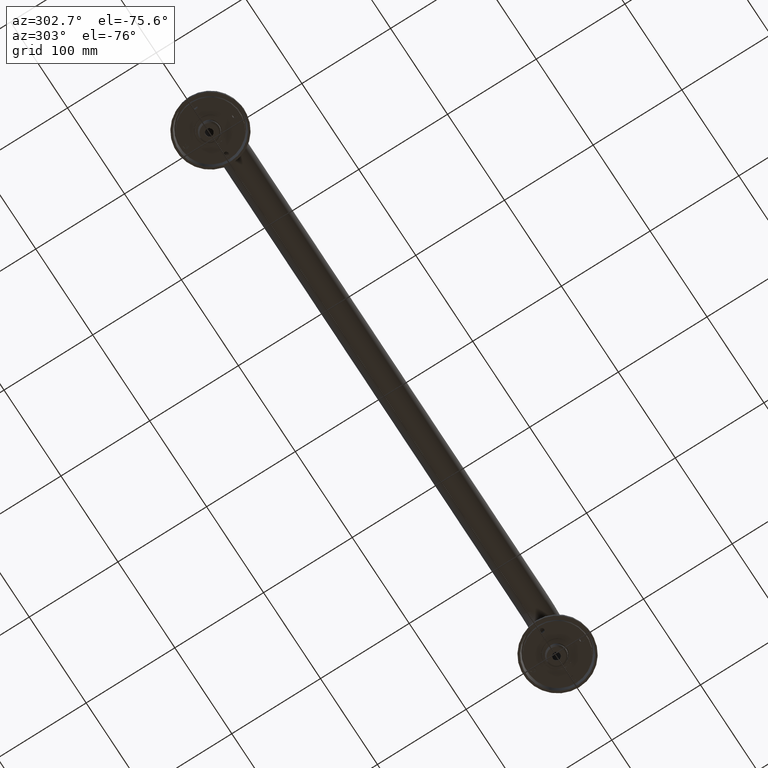
[diagram: clean part render]
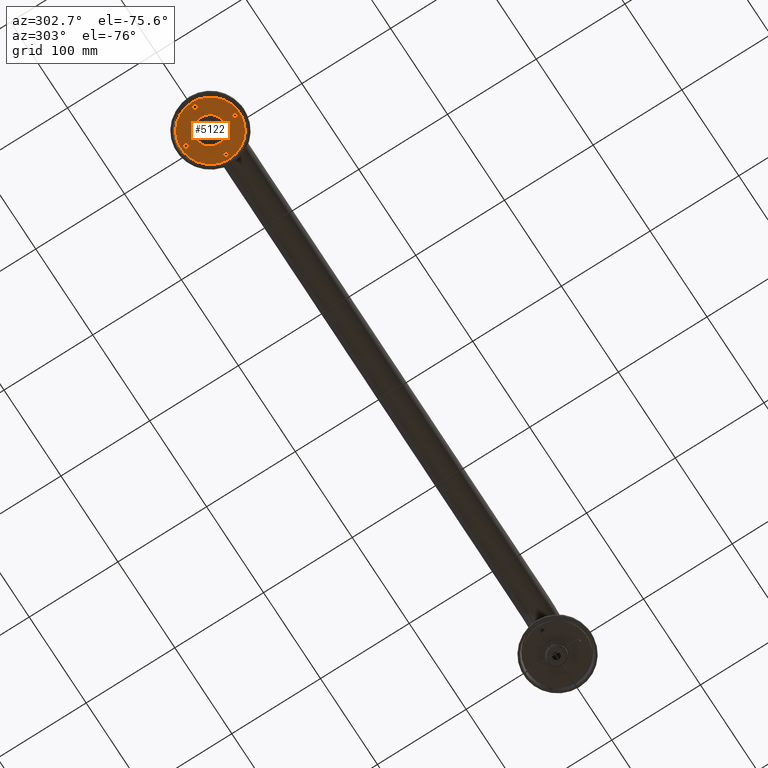
[diagram: same view with one face highlighted and labeled with its STEP entity id]
A machine part, auxiliary view. The second image highlights one B-rep face of the part: STEP entity #5122.
In plain terms, the highlighted planar face has unit normal (0, 0, -1).
Its self-contained STEP definition (entity closure, byte-faithful):
#2=CARTESIAN_POINT('',(5.722264935082E-1,0.E0,-9.464058393381E-2));
#3=CARTESIAN_POINT('',(5.688281682621E-1,0.E0,-1.218314083238E-1));
#4=CARTESIAN_POINT('',(5.582992022263E-1,0.E0,-1.751319655582E-1));
#5=CARTESIAN_POINT('',(5.313062002413E-1,0.E0,-2.526975398778E-1));
#6=CARTESIAN_POINT('',(4.939485958148E-1,0.E0,-3.254075436984E-1));
#7=CARTESIAN_POINT('',(4.466742526957E-1,0.E0,-3.926206551469E-1));
#8=CARTESIAN_POINT('',(3.902024871582E-1,0.E0,-4.530290268181E-1));
#9=CARTESIAN_POINT('',(3.254382356475E-1,0.E0,-5.053600486944E-1));
#10=CARTESIAN_POINT('',(2.544341901140E-1,0.E0,-5.480598758409E-1));
#11=CARTESIAN_POINT('',(1.768364647440E-1,0.E0,-5.812376267669E-1));
#12=CARTESIAN_POINT('',(9.329452488357E-2,0.E0,-6.036647345225E-1));
#13=CARTESIAN_POINT('',(8.831546428493E-3,0.E0,-6.137742578361E-1));
#14=CARTESIAN_POINT('',(-7.101472730259E-2,0.E0,-6.124618048716E-1));
#15=CARTESIAN_POINT('',(-1.445927257221E-1,0.E0,-6.019642030141E-1));
#16=CARTESIAN_POINT('',(-2.109207781203E-1,0.E0,-5.845606210769E-1));
#17=CARTESIAN_POINT('',(-2.724781056086E-1,0.E0,-5.611833094847E-1));
#18=CARTESIAN_POINT('',(-3.115653597881E-1,0.E0,-5.414347864731E-1));
#19=CARTESIAN_POINT('',(-3.305348218873E-1,0.E0,-5.305626650264E-1));
#21=CARTESIAN_POINT('',(-5.311850141208E-1,0.E0,3.295337475487E-1));
#22=CARTESIAN_POINT('',(-5.142968474583E-1,0.E0,3.546487406638E-1));
#23=CARTESIAN_POINT('',(-4.779550539336E-1,0.E0,4.008211967865E-1));
#24=CARTESIAN_POINT('',(-4.178893244134E-1,0.E0,4.587641475976E-1));
#25=CARTESIAN_POINT('',(-3.522505082191E-1,0.E0,5.071642330954E-1));
#26=CARTESIAN_POINT('',(-2.814594918148E-1,0.E0,5.462514978776E-1));
#27=CARTESIAN_POINT('',(-2.052844433480E-1,0.E0,5.759818730305E-1));
#28=CARTESIAN_POINT('',(-1.258220742243E-1,0.E0,5.952524664870E-1));
#29=CARTESIAN_POINT('',(-4.465596855189E-2,0.E0,6.036151363386E-1));
#30=CARTESIAN_POINT('',(3.494004686779E-2,0.E0,6.011908700706E-1));
#31=CARTESIAN_POINT('',(1.144238528315E-1,0.E0,5.881889392295E-1));
#32=CARTESIAN_POINT('',(1.932163182401E-1,0.E0,5.639753267390E-1));
#33=CARTESIAN_POINT('',(2.705141308606E-1,0.E0,5.277814241668E-1));
#34=CARTESIAN_POINT('',(3.460910995130E-1,0.E0,4.776600811911E-1));
#35=CARTESIAN_POINT('',(4.157113302632E-1,0.E0,4.133037922807E-1));
#36=CARTESIAN_POINT('',(4.539407566792E-1,0.E0,3.643847748406E-1));
#37=CARTESIAN_POINT('',(4.712784777770E-1,0.E0,3.380777963490E-1));
#39=CARTESIAN_POINT('',(-3.305348218873E-1,0.E0,-5.305626650264E-1));
#40=CARTESIAN_POINT('',(-3.460701982215E-1,0.E0,-5.208842930111E-1));
#41=CARTESIAN_POINT('',(-3.776375952280E-1,0.E0,-4.993030269555E-1));
#42=CARTESIAN_POINT('',(-4.251607866885E-1,0.E0,-4.598007938834E-1));
#43=CARTESIAN_POINT('',(-4.739038475815E-1,0.E0,-4.098304182318E-1));
#44=CARTESIAN_POINT('',(-5.208646688984E-1,0.E0,-3.487496015051E-1));
#45=CARTESIAN_POINT('',(-5.634130692686E-1,0.E0,-2.754980879438E-1));
#46=CARTESIAN_POINT('',(-5.974598332112E-1,0.E0,-1.914434688455E-1));
#47=CARTESIAN_POINT('',(-6.192235035235E-1,0.E0,-1.008384795135E-1));
#48=CARTESIAN_POINT('',(-6.272156835746E-1,0.E0,-9.672106177716E-3));
#49=CARTESIAN_POINT('',(-6.220532993115E-1,0.E0,8.075776242183E-2));
#50=CARTESIAN_POINT('',(-6.040130954900E-1,0.E0,1.690845711726E-1));
#51=CARTESIAN_POINT('',(-5.740013710682E-1,0.E0,2.526974973502E-1));
#52=CARTESIAN_POINT('',(-5.467000973879E-1,0.E0,3.045245344237E-1));
#53=CARTESIAN_POINT('',(-5.311850141208E-1,0.E0,3.295337475487E-1));
#55=CARTESIAN_POINT('',(0.E0,0.E0,-1.0875E0));
#56=DIRECTION('',(0.E0,1.E0,0.E0));
#57=DIRECTION('',(1.E0,0.E0,0.E0));
#58=AXIS2_PLACEMENT_3D('',#55,#56,#57);
#60=CARTESIAN_POINT('',(0.E0,0.E0,-1.0875E0));
#61=DIRECTION('',(0.E0,1.E0,0.E0));
#62=DIRECTION('',(-1.E0,0.E0,0.E0));
#63=AXIS2_PLACEMENT_3D('',#60,#61,#62);
#65=CARTESIAN_POINT('',(-1.0875E0,0.E0,0.E0));
#66=DIRECTION('',(0.E0,1.E0,0.E0));
#67=DIRECTION('',(0.E0,0.E0,-1.E0));
#68=AXIS2_PLACEMENT_3D('',#65,#66,#67);
#70=CARTESIAN_POINT('',(-1.0875E0,0.E0,0.E0));
#71=DIRECTION('',(0.E0,1.E0,0.E0));
#72=DIRECTION('',(0.E0,0.E0,1.E0));
#73=AXIS2_PLACEMENT_3D('',#70,#71,#72);
#75=CARTESIAN_POINT('',(0.E0,0.E0,1.0875E0));
#76=DIRECTION('',(0.E0,1.E0,0.E0));
#77=DIRECTION('',(-1.E0,0.E0,0.E0));
#78=AXIS2_PLACEMENT_3D('',#75,#76,#77);
#80=CARTESIAN_POINT('',(0.E0,0.E0,1.0875E0));
#81=DIRECTION('',(0.E0,1.E0,0.E0));
#82=DIRECTION('',(1.E0,0.E0,0.E0));
#83=AXIS2_PLACEMENT_3D('',#80,#81,#82);
#85=CARTESIAN_POINT('',(1.0875E0,0.E0,0.E0));
#86=DIRECTION('',(0.E0,1.E0,0.E0));
#87=DIRECTION('',(0.E0,0.E0,1.E0));
#88=AXIS2_PLACEMENT_3D('',#85,#86,#87);
#90=CARTESIAN_POINT('',(1.0875E0,0.E0,0.E0));
#91=DIRECTION('',(0.E0,1.E0,0.E0));
#92=DIRECTION('',(0.E0,0.E0,-1.E0));
#93=AXIS2_PLACEMENT_3D('',#90,#91,#92);
#95=CARTESIAN_POINT('',(0.E0,0.E0,0.E0));
#96=DIRECTION('',(0.E0,-1.E0,0.E0));
#97=DIRECTION('',(1.E0,0.E0,0.E0));
#98=AXIS2_PLACEMENT_3D('',#95,#96,#97);
#135=CARTESIAN_POINT('',(0.E0,0.E0,0.E0));
#136=DIRECTION('',(0.E0,1.E0,0.E0));
#137=DIRECTION('',(1.E0,0.E0,0.E0));
#138=AXIS2_PLACEMENT_3D('',#135,#136,#137);
#2215=CARTESIAN_POINT('',(0.E0,0.E0,0.E0));
#2216=DIRECTION('',(0.E0,1.E0,0.E0));
#2217=DIRECTION('',(8.125490996156E-1,0.E0,5.828927523258E-1));
#2218=AXIS2_PLACEMENT_3D('',#2215,#2216,#2217);
#4529=CARTESIAN_POINT('',(1.3E0,0.E0,0.E0));
#4530=CARTESIAN_POINT('',(-1.3E0,0.E0,0.E0));
#4531=VERTEX_POINT('',#4529);
#4532=VERTEX_POINT('',#4530);
#4549=VERTEX_POINT('',#2);
#4550=VERTEX_POINT('',#19);
#4551=VERTEX_POINT('',#53);
#4552=VERTEX_POINT('',#37);
#4580=CARTESIAN_POINT('',(1.01E-1,0.E0,-1.0875E0));
#4581=CARTESIAN_POINT('',(-1.01E-1,0.E0,-1.0875E0));
#4582=VERTEX_POINT('',#4580);
#4583=VERTEX_POINT('',#4581);
#4590=CARTESIAN_POINT('',(-1.0875E0,0.E0,-1.01E-1));
#4591=CARTESIAN_POINT('',(-1.0875E0,0.E0,1.01E-1));
#4592=VERTEX_POINT('',#4590);
#4593=VERTEX_POINT('',#4591);
#4602=CARTESIAN_POINT('',(-1.01E-1,0.E0,1.0875E0));
#4603=CARTESIAN_POINT('',(1.01E-1,0.E0,1.0875E0));
#4604=VERTEX_POINT('',#4602);
#4605=VERTEX_POINT('',#4603);
#4614=CARTESIAN_POINT('',(1.0875E0,0.E0,1.01E-1));
#4615=CARTESIAN_POINT('',(1.0875E0,0.E0,-1.01E-1));
#4616=VERTEX_POINT('',#4614);
#4617=VERTEX_POINT('',#4615);
#5077=CARTESIAN_POINT('',(0.E0,0.E0,0.E0));
#5078=DIRECTION('',(0.E0,-1.E0,0.E0));
#5079=DIRECTION('',(-1.E0,0.E0,0.E0));
#5080=AXIS2_PLACEMENT_3D('',#5077,#5078,#5079);
#5081=PLANE('',#5080);
#5083=ORIENTED_EDGE('',*,*,#5082,.F.);
#5085=ORIENTED_EDGE('',*,*,#5084,.T.);
#5086=EDGE_LOOP('',(#5083,#5085));
#5087=FACE_OUTER_BOUND('',#5086,.F.);
#5089=ORIENTED_EDGE('',*,*,#5088,.F.);
#5091=ORIENTED_EDGE('',*,*,#5090,.F.);
#5093=ORIENTED_EDGE('',*,*,#5092,.F.);
#5095=ORIENTED_EDGE('',*,*,#5094,.F.);
#5096=EDGE_LOOP('',(#5089,#5091,#5093,#5095));
#5097=FACE_BOUND('',#5096,.F.);
#5099=ORIENTED_EDGE('',*,*,#5098,.F.);
#5101=ORIENTED_EDGE('',*,*,#5100,.F.);
#5102=EDGE_LOOP('',(#5099,#5101));
#5103=FACE_BOUND('',#5102,.F.);
#5105=ORIENTED_EDGE('',*,*,#5104,.F.);
#5107=ORIENTED_EDGE('',*,*,#5106,.F.);
#5108=EDGE_LOOP('',(#5105,#5107));
#5109=FACE_BOUND('',#5108,.F.);
#5111=ORIENTED_EDGE('',*,*,#5110,.F.);
#5113=ORIENTED_EDGE('',*,*,#5112,.F.);
#5114=EDGE_LOOP('',(#5111,#5113));
#5115=FACE_BOUND('',#5114,.F.);
#5117=ORIENTED_EDGE('',*,*,#5116,.F.);
#5119=ORIENTED_EDGE('',*,*,#5118,.F.);
#5120=EDGE_LOOP('',(#5117,#5119));
#5121=FACE_BOUND('',#5120,.F.);
#5122=ADVANCED_FACE('',(#5087,#5097,#5103,#5109,#5115,#5121),#5081,.T.);
#20=B_SPLINE_CURVE_WITH_KNOTS('',3,(#2,#3,#4,#5,#6,#7,#8,#9,#10,#11,#12,#13,#14,
#15,#16,#17,#18,#19),.UNSPECIFIED.,.F.,.F.,(4,1,1,1,1,1,1,1,1,1,1,1,1,1,1,4),(
0.E0,6.666666666667E-2,1.333333333333E-1,2.E-1,2.666666666667E-1,
3.333333333333E-1,4.E-1,4.666666666667E-1,5.333333333333E-1,6.E-1,
6.666666666667E-1,7.333333333333E-1,8.E-1,8.666666666667E-1,9.333333333333E-1,
1.E0),.UNSPECIFIED.);
#38=B_SPLINE_CURVE_WITH_KNOTS('',3,(#21,#22,#23,#24,#25,#26,#27,#28,#29,#30,#31,
#32,#33,#34,#35,#36,#37),.UNSPECIFIED.,.F.,.F.,(4,1,1,1,1,1,1,1,1,1,1,1,1,1,4),(
0.E0,7.142857142857E-2,1.428571428571E-1,2.142857142857E-1,2.857142857143E-1,
3.571428571429E-1,4.285714285714E-1,5.E-1,5.714285714286E-1,6.428571428571E-1,
7.142857142857E-1,7.857142857143E-1,8.571428571429E-1,9.285714285714E-1,1.E0),
.UNSPECIFIED.);
#54=B_SPLINE_CURVE_WITH_KNOTS('',3,(#39,#40,#41,#42,#43,#44,#45,#46,#47,#48,#49,
#50,#51,#52,#53),.UNSPECIFIED.,.F.,.F.,(4,1,1,1,1,1,1,1,1,1,1,1,4),(0.E0,
8.333333333333E-2,1.666666666667E-1,2.5E-1,3.333333333333E-1,4.166666666667E-1,
5.E-1,5.833333333333E-1,6.666666666667E-1,7.5E-1,8.333333333333E-1,
9.166666666667E-1,1.E0),.UNSPECIFIED.);
#59=CIRCLE('',#58,1.01E-1);
#64=CIRCLE('',#63,1.01E-1);
#69=CIRCLE('',#68,1.01E-1);
#74=CIRCLE('',#73,1.01E-1);
#79=CIRCLE('',#78,1.01E-1);
#84=CIRCLE('',#83,1.01E-1);
#89=CIRCLE('',#88,1.01E-1);
#94=CIRCLE('',#93,1.01E-1);
#99=CIRCLE('',#98,1.3E0);
#139=CIRCLE('',#138,1.3E0);
#2219=CIRCLE('',#2218,5.8E-1);
#5082=EDGE_CURVE('',#4531,#4532,#99,.T.);
#5084=EDGE_CURVE('',#4531,#4532,#139,.T.);
#5088=EDGE_CURVE('',#4549,#4550,#20,.T.);
#5090=EDGE_CURVE('',#4552,#4549,#2219,.T.);
#5092=EDGE_CURVE('',#4551,#4552,#38,.T.);
#5094=EDGE_CURVE('',#4550,#4551,#54,.T.);
#5098=EDGE_CURVE('',#4582,#4583,#59,.T.);
#5100=EDGE_CURVE('',#4583,#4582,#64,.T.);
#5104=EDGE_CURVE('',#4592,#4593,#69,.T.);
#5106=EDGE_CURVE('',#4593,#4592,#74,.T.);
#5110=EDGE_CURVE('',#4604,#4605,#79,.T.);
#5112=EDGE_CURVE('',#4605,#4604,#84,.T.);
#5116=EDGE_CURVE('',#4616,#4617,#89,.T.);
#5118=EDGE_CURVE('',#4617,#4616,#94,.T.);